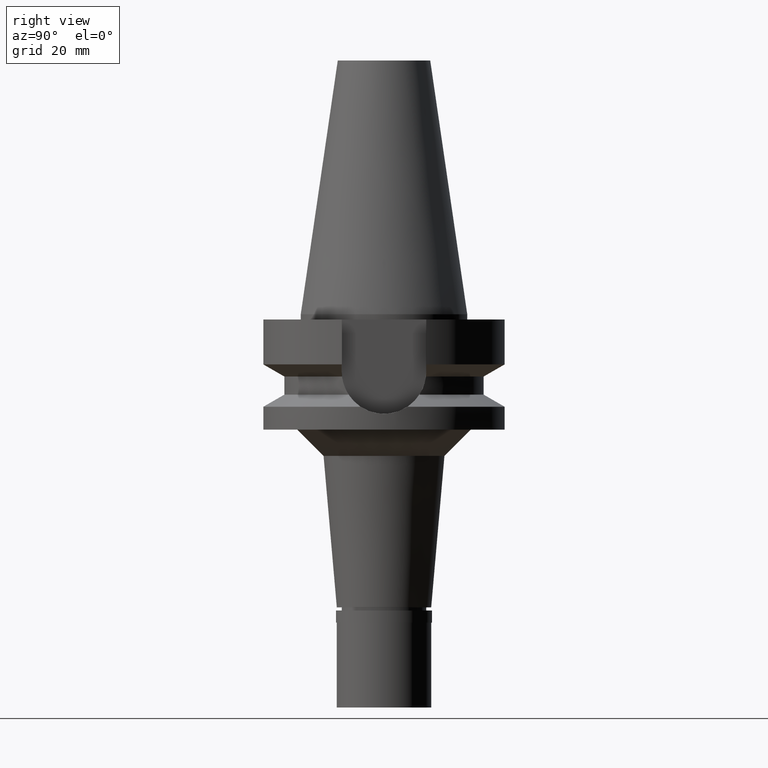
[diagram: clean part render]
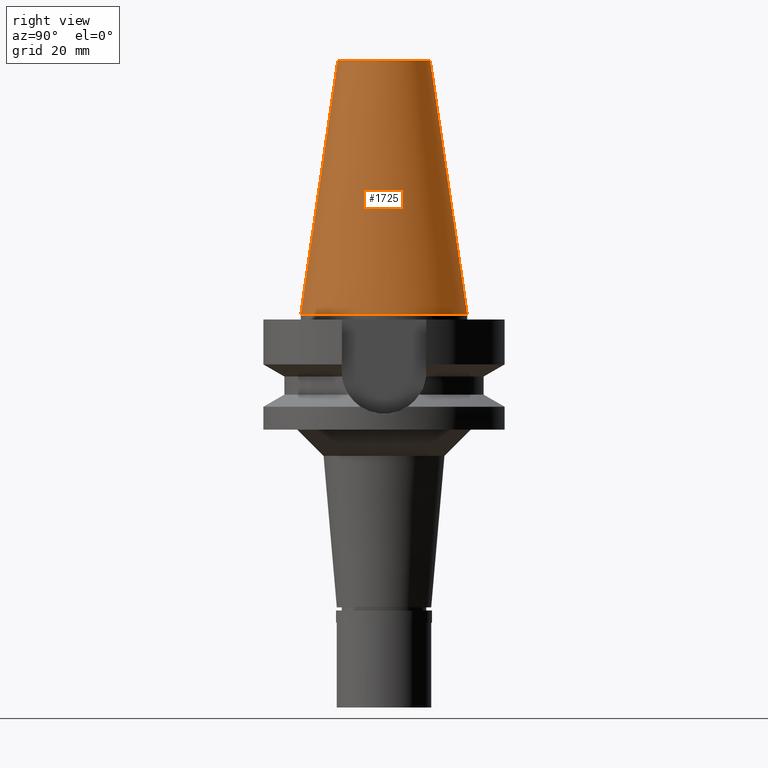
[diagram: same view with one face highlighted and labeled with its STEP entity id]
A machine part, right view. The second image highlights one B-rep face of the part: STEP entity #1725.
In plain terms, the highlighted conical surface has half-angle 8.297 deg.
Its self-contained STEP definition (entity closure, byte-faithful):
#54 = ORIENTED_EDGE ( 'NONE', *, *, #1449, .T. ) ;
#76 = CIRCLE ( 'NONE', #2326, 15.87500000000000000 ) ;
#128 = ORIENTED_EDGE ( 'NONE', *, *, #2571, .T. ) ;
#324 = VECTOR ( 'NONE', #1250, 1000.000000000000114 ) ;
#343 = DIRECTION ( 'NONE',  ( 0.0000000000000000000, 0.0000000000000000000, -1.000000000000000000 ) ) ;
#549 = VERTEX_POINT ( 'NONE', #2820 ) ;
#566 = CONICAL_SURFACE ( 'NONE', #2754, 12.34589586639000025, 0.1448099680379422438 ) ;
#585 = CARTESIAN_POINT ( 'NONE',  ( 0.0000000000000000000, -15.87500000000000000, -1.705302565823999875E-13 ) ) ;
#650 = EDGE_LOOP ( 'NONE', ( #128, #54, #2724, #2627 ) ) ;
#690 = DIRECTION ( 'NONE',  ( 0.0000000000000000000, 0.0000000000000000000, -1.000000000000000000 ) ) ;
#730 = CARTESIAN_POINT ( 'NONE',  ( 0.0000000000000000000, 1.521011324540999938E-14, -3.694822225953000089E-13 ) ) ;
#766 = LINE ( 'NONE', #1867, #324 ) ;
#806 = DIRECTION ( 'NONE',  ( 0.0000000000000000000, 0.1443043893539925626, -0.9895333461855498891 ) ) ;
#835 = CARTESIAN_POINT ( 'NONE',  ( 0.0000000000000000000, 8.816791732783000768, 48.39999999999999858 ) ) ;
#869 = FACE_OUTER_BOUND ( 'NONE', #650, .T. ) ;
#931 = DIRECTION ( 'NONE',  ( 0.0000000000000000000, 1.000000000000000000, 0.0000000000000000000 ) ) ;
#1026 = CARTESIAN_POINT ( 'NONE',  ( 0.0000000000000000000, 8.816791732783000768, 48.39999999999999858 ) ) ;
#1086 = CARTESIAN_POINT ( 'NONE',  ( 0.0000000000000000000, 15.87500000000000000, -1.705302565823999875E-13 ) ) ;
#1132 = CARTESIAN_POINT ( 'NONE',  ( 0.0000000000000000000, 1.521011324540999938E-14, 24.19999999999999929 ) ) ;
#1250 = DIRECTION ( 'NONE',  ( 0.0000000000000000000, -0.1443043893539925626, -0.9895333461855498891 ) ) ;
#1449 = EDGE_CURVE ( 'NONE', #549, #1496, #766, .T. ) ;
#1490 = EDGE_CURVE ( 'NONE', #2437, #1496, #76, .T. ) ;
#1496 = VERTEX_POINT ( 'NONE', #585 ) ;
#1515 = AXIS2_PLACEMENT_3D ( 'NONE', #2731, #690, #931 ) ;
#1562 = DIRECTION ( 'NONE',  ( 0.0000000000000000000, 0.0000000000000000000, -1.000000000000000000 ) ) ;
#1597 = VERTEX_POINT ( 'NONE', #835 ) ;
#1725 = ADVANCED_FACE ( 'NONE', ( #869 ), #566, .T. ) ;
#1867 = CARTESIAN_POINT ( 'NONE',  ( 0.0000000000000000000, -8.816791732783000768, 48.39999999999999858 ) ) ;
#1978 = LINE ( 'NONE', #1026, #2665 ) ;
#2010 = DIRECTION ( 'NONE',  ( 0.0000000000000000000, -1.000000000000000000, 0.0000000000000000000 ) ) ;
#2069 = EDGE_CURVE ( 'NONE', #1597, #2437, #1978, .T. ) ;
#2225 = DIRECTION ( 'NONE',  ( 0.0000000000000000000, 1.000000000000000000, 0.0000000000000000000 ) ) ;
#2280 = CIRCLE ( 'NONE', #1515, 8.816791732783000768 ) ;
#2326 = AXIS2_PLACEMENT_3D ( 'NONE', #730, #343, #2225 ) ;
#2437 = VERTEX_POINT ( 'NONE', #1086 ) ;
#2571 = EDGE_CURVE ( 'NONE', #1597, #549, #2280, .T. ) ;
#2627 = ORIENTED_EDGE ( 'NONE', *, *, #2069, .F. ) ;
#2665 = VECTOR ( 'NONE', #806, 1000.000000000000114 ) ;
#2724 = ORIENTED_EDGE ( 'NONE', *, *, #1490, .F. ) ;
#2731 = CARTESIAN_POINT ( 'NONE',  ( 0.0000000000000000000, 1.521011324540999938E-14, 48.39999999999999858 ) ) ;
#2754 = AXIS2_PLACEMENT_3D ( 'NONE', #1132, #1562, #2010 ) ;
#2820 = CARTESIAN_POINT ( 'NONE',  ( 0.0000000000000000000, -8.816791732783000768, 48.39999999999999858 ) ) ;